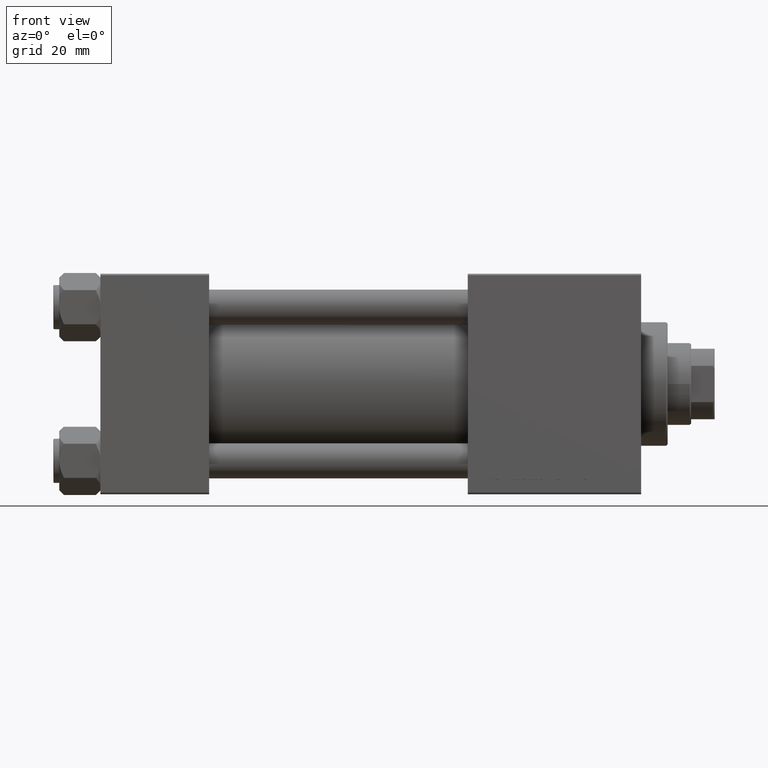
[diagram: clean part render]
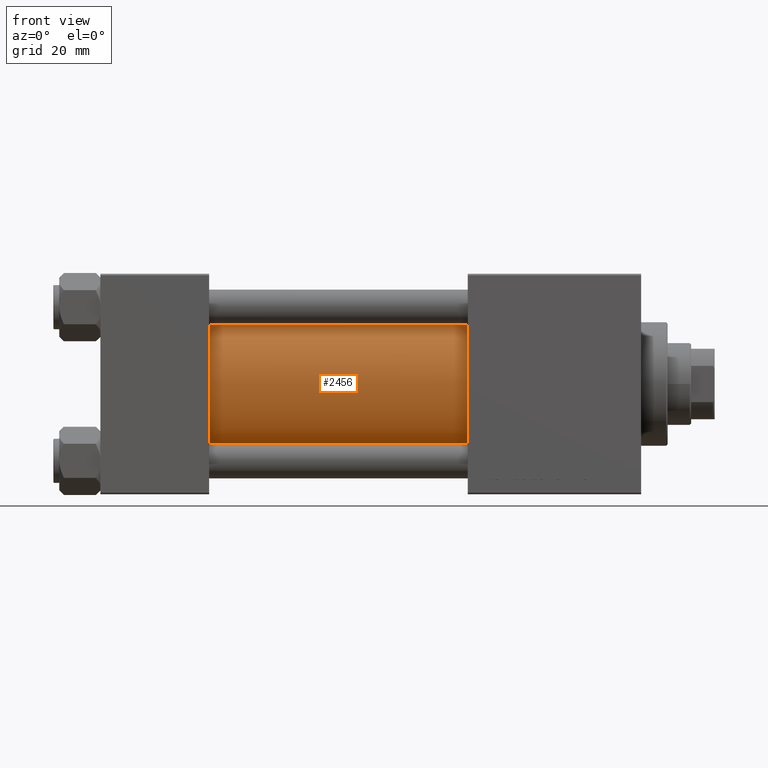
[diagram: same view with one face highlighted and labeled with its STEP entity id]
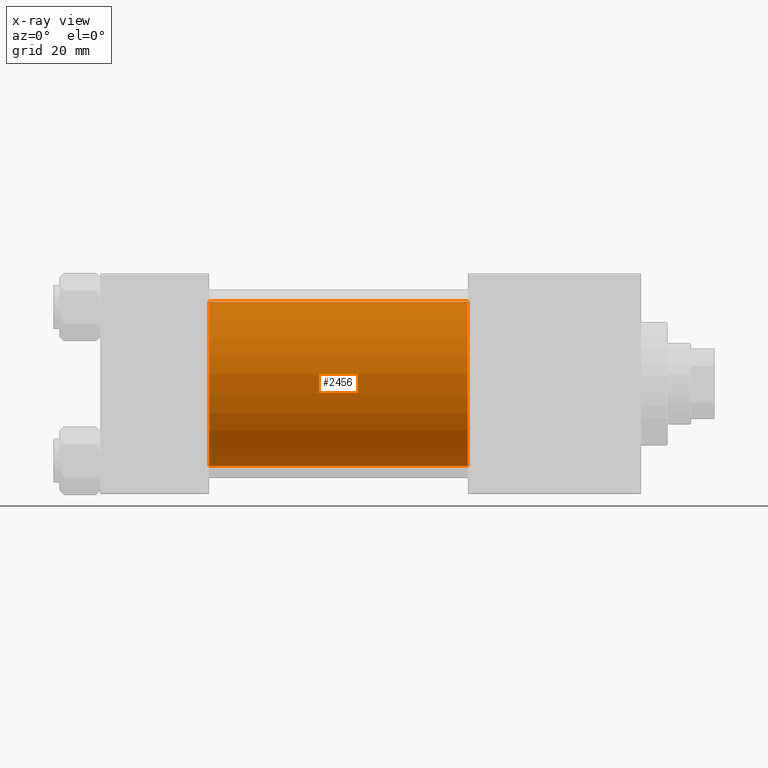
[diagram: x-ray of the same camera — body ghosted, the highlighted face saturated]
A machine part, front view. The second image highlights one B-rep face of the part: STEP entity #2456.
The next image is the same camera in x-ray: the body ghosted, the highlighted face saturated — about 2% of this face is hidden behind the body in this view.
In plain terms, the highlighted cylindrical surface (partial cylindrical patch) has radius 28 mm, axis along (-1, -0, -0).
Its self-contained STEP definition (entity closure, byte-faithful):
#825 = VERTEX_POINT ( 'NONE', #28770 ) ;
#1636 = CARTESIAN_POINT ( 'NONE',  ( 37.00000000000000711, -2.602085213965210642E-15, 0.000000000000000000 ) ) ;
#1963 = CYLINDRICAL_SURFACE ( 'NONE', #39200, 28.00000000000000000 ) ;
#2153 = VERTEX_POINT ( 'NONE', #22096 ) ;
#2456 = ADVANCED_FACE ( 'NONE', ( #13900 ), #1963, .T. ) ;
#2715 = DIRECTION ( 'NONE',  ( 0.000000000000000000, 0.000000000000000000, 1.000000000000000000 ) ) ;
#2718 = CARTESIAN_POINT ( 'NONE',  ( 125.0000000000000000, -2.602085213965210642E-15, 28.00000000000000000 ) ) ;
#4411 = AXIS2_PLACEMENT_3D ( 'NONE', #46145, #42336, #30431 ) ;
#4525 = EDGE_CURVE ( 'NONE', #40103, #825, #38476, .T. ) ;
#7640 = CIRCLE ( 'NONE', #48155, 28.00000000000000000 ) ;
#10345 = ORIENTED_EDGE ( 'NONE', *, *, #30692, .T. ) ;
#11864 = DIRECTION ( 'NONE',  ( 0.000000000000000000, 0.000000000000000000, 1.000000000000000000 ) ) ;
#13242 = VECTOR ( 'NONE', #36071, 1000.000000000000000 ) ;
#13900 = FACE_OUTER_BOUND ( 'NONE', #21646, .T. ) ;
#20002 = LINE ( 'NONE', #20258, #25211 ) ;
#20258 = CARTESIAN_POINT ( 'NONE',  ( 125.0000000000000000, 8.269258236473784371E-16, -28.00000000000000000 ) ) ;
#20462 = ORIENTED_EDGE ( 'NONE', *, *, #32501, .T. ) ;
#20609 = LINE ( 'NONE', #2718, #13242 ) ;
#21646 = EDGE_LOOP ( 'NONE', ( #34112, #42816, #10345, #20462 ) ) ;
#22096 = CARTESIAN_POINT ( 'NONE',  ( 37.00000000000000711, 8.269258236473784371E-16, -28.00000000000000000 ) ) ;
#23934 = EDGE_CURVE ( 'NONE', #825, #2153, #20002, .T. ) ;
#25211 = VECTOR ( 'NONE', #43320, 1000.000000000000000 ) ;
#26337 = CARTESIAN_POINT ( 'NONE',  ( 125.0000000000000000, -2.602085213965210642E-15, 0.000000000000000000 ) ) ;
#28770 = CARTESIAN_POINT ( 'NONE',  ( 125.0000000000000000, 8.269258236473784371E-16, -28.00000000000000000 ) ) ;
#29647 = DIRECTION ( 'NONE',  ( -1.000000000000000000, -0.000000000000000000, -0.000000000000000000 ) ) ;
#30431 = DIRECTION ( 'NONE',  ( 0.000000000000000000, 0.000000000000000000, -1.000000000000000000 ) ) ;
#30692 = EDGE_CURVE ( 'NONE', #40103, #47777, #20609, .T. ) ;
#32501 = EDGE_CURVE ( 'NONE', #47777, #2153, #7640, .T. ) ;
#34112 = ORIENTED_EDGE ( 'NONE', *, *, #23934, .F. ) ;
#35209 = DIRECTION ( 'NONE',  ( 1.000000000000000000, -0.000000000000000000, 0.000000000000000000 ) ) ;
#36071 = DIRECTION ( 'NONE',  ( -1.000000000000000000, -0.000000000000000000, -0.000000000000000000 ) ) ;
#37321 = CARTESIAN_POINT ( 'NONE',  ( 37.00000000000000711, -2.602085213965210642E-15, 28.00000000000000000 ) ) ;
#38476 = CIRCLE ( 'NONE', #4411, 28.00000000000000000 ) ;
#39200 = AXIS2_PLACEMENT_3D ( 'NONE', #26337, #29647, #2715 ) ;
#39944 = CARTESIAN_POINT ( 'NONE',  ( 125.0000000000000000, -2.602085213965210642E-15, 28.00000000000000000 ) ) ;
#40103 = VERTEX_POINT ( 'NONE', #39944 ) ;
#42336 = DIRECTION ( 'NONE',  ( 1.000000000000000000, 0.000000000000000000, 0.000000000000000000 ) ) ;
#42816 = ORIENTED_EDGE ( 'NONE', *, *, #4525, .F. ) ;
#43320 = DIRECTION ( 'NONE',  ( -1.000000000000000000, -0.000000000000000000, -0.000000000000000000 ) ) ;
#46145 = CARTESIAN_POINT ( 'NONE',  ( 125.0000000000000000, -2.602085213965210642E-15, 0.000000000000000000 ) ) ;
#47777 = VERTEX_POINT ( 'NONE', #37321 ) ;
#48155 = AXIS2_PLACEMENT_3D ( 'NONE', #1636, #35209, #11864 ) ;